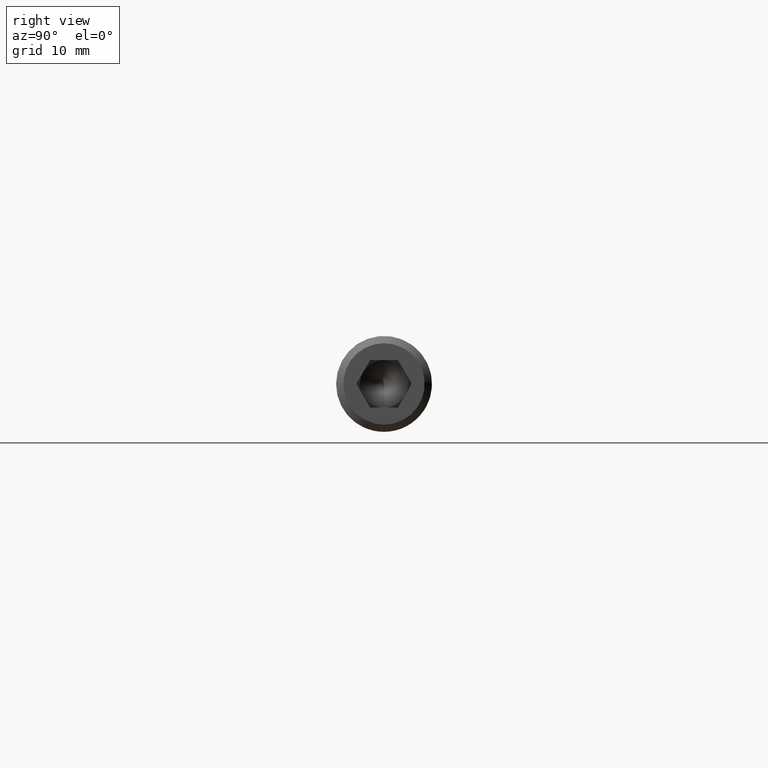
[diagram: clean part render]
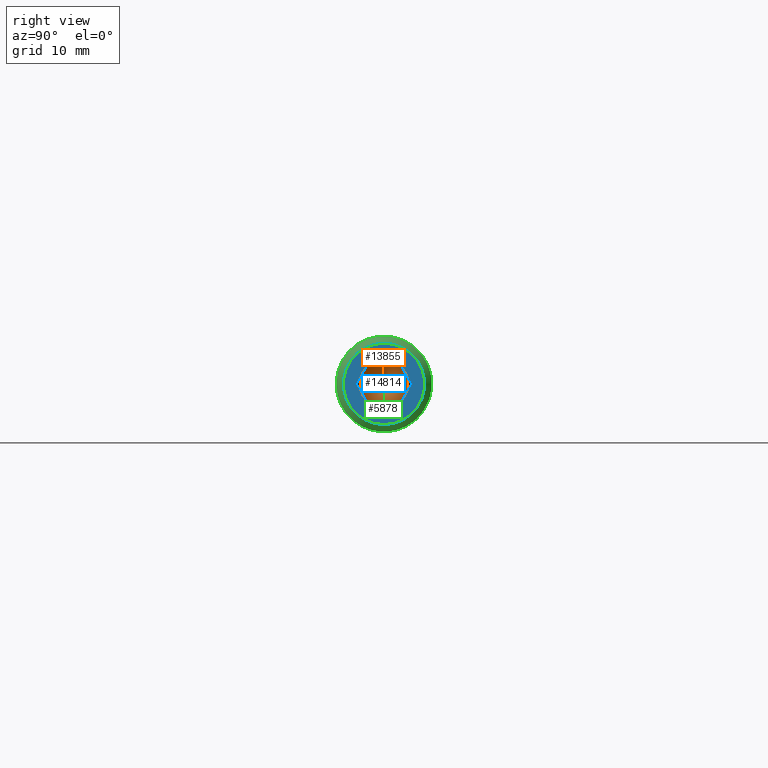
[diagram: same view with three faces highlighted in distinct colors, each labeled with its STEP entity id]
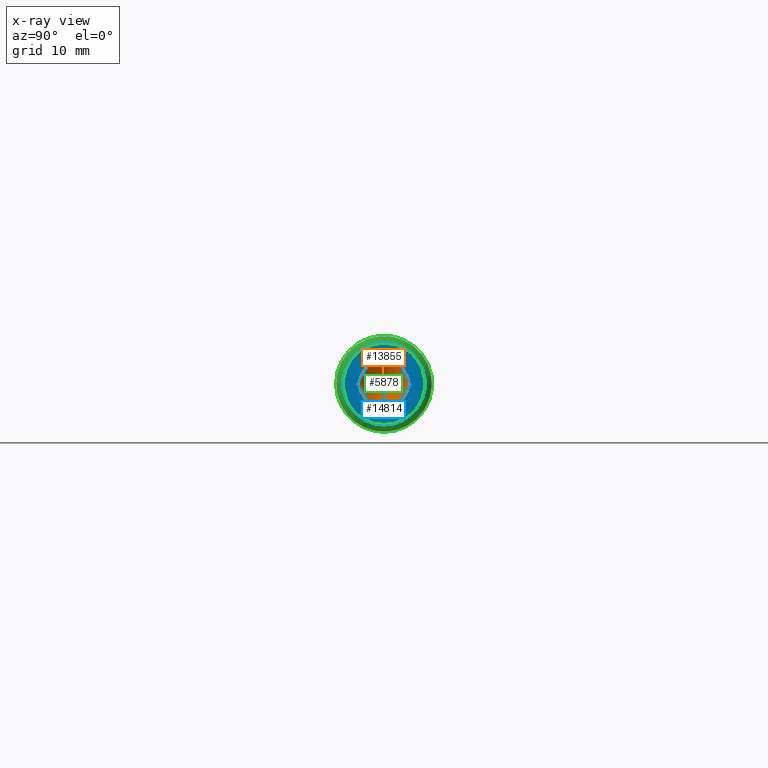
[diagram: x-ray of the same camera — body ghosted, the three highlighted faces saturated]
A machine part, right view with three faces highlighted in distinct colors.
The next image is the same camera in x-ray (body ghosted, the three faces saturated) — at least one of them is partly hidden behind the body in this view.
Their STEP definitions:

[orange] entity #13855 — the highlighted conical surface has half-angle 59 deg.
#170 = VERTEX_POINT ( 'NONE', #16548 ) ;
#765 = ORIENTED_EDGE ( 'NONE', *, *, #15495, .T. ) ;
#844 = ORIENTED_EDGE ( 'NONE', *, *, #7457, .F. ) ;
#886 = AXIS2_PLACEMENT_3D ( 'NONE', #8469, #12999, #2920 ) ;
#1469 = CARTESIAN_POINT ( 'NONE',  ( 55.00000000000000000, 3.755786496842892600E-016, -2.000000000000000000 ) ) ;
#1538 = DIRECTION ( 'NONE',  ( -1.000000000000000000, -0.0000000000000000000, 0.0000000000000000000 ) ) ;
#1597 = DIRECTION ( 'NONE',  ( 0.0000000000000000000, 0.0000000000000000000, 1.000000000000000000 ) ) ;
#1627 = EDGE_CURVE ( 'NONE', #13230, #8845, #8529, .T. ) ;
#2353 = EDGE_CURVE ( 'NONE', #8845, #8302, #6944, .T. ) ;
#2422 = CARTESIAN_POINT ( 'NONE',  ( 55.00000000000000000, -1.732050807568875400, 0.9999999999999985600 ) ) ;
#2920 = DIRECTION ( 'NONE',  ( 0.0000000000000000000, 0.0000000000000000000, 1.000000000000000000 ) ) ;
#3051 = CARTESIAN_POINT ( 'NONE',  ( 55.00000000000000000, 0.0000000000000000000, -1.592040838891560300E-015 ) ) ;
#3495 = CARTESIAN_POINT ( 'NONE',  ( 55.00000000000000000, 1.732050807568875900, 0.9999999999999978900 ) ) ;
#4305 = CARTESIAN_POINT ( 'NONE',  ( 55.00000000000000000, 0.0000000000000000000, 1.999999999999999600 ) ) ;
#5507 = ORIENTED_EDGE ( 'NONE', *, *, #2353, .F. ) ;
#5804 = CARTESIAN_POINT ( 'NONE',  ( 55.00000000000000000, 0.0000000000000000000, -1.121444179991781000E-015 ) ) ;
#5894 = DIRECTION ( 'NONE',  ( 0.0000000000000000000, 0.0000000000000000000, -1.000000000000000000 ) ) ;
#5915 = VERTEX_POINT ( 'NONE', #2422 ) ;
#6129 = AXIS2_PLACEMENT_3D ( 'NONE', #14236, #7124, #15632 ) ;
#6597 = DIRECTION ( 'NONE',  ( -1.000000000000000000, -0.0000000000000000000, 0.0000000000000000000 ) ) ;
#6618 = AXIS2_PLACEMENT_3D ( 'NONE', #5804, #1538, #1597 ) ;
#6944 = CIRCLE ( 'NONE', #18146, 1.999999999999997800 ) ;
#7124 = DIRECTION ( 'NONE',  ( 1.000000000000000000, -0.0000000000000000000, -1.413814998894124700E-016 ) ) ;
#7457 = EDGE_CURVE ( 'NONE', #18397, #170, #7988, .T. ) ;
#7721 = CIRCLE ( 'NONE', #11739, 1.999999999999998200 ) ;
#7729 = DIRECTION ( 'NONE',  ( -1.000000000000000000, -0.0000000000000000000, 0.0000000000000000000 ) ) ;
#7978 = EDGE_CURVE ( 'NONE', #5915, #13230, #18252, .T. ) ;
#7988 = CIRCLE ( 'NONE', #8252, 1.999999999999997800 ) ;
#8252 = AXIS2_PLACEMENT_3D ( 'NONE', #14488, #11505, #10137 ) ;
#8302 = VERTEX_POINT ( 'NONE', #8719 ) ;
#8469 = CARTESIAN_POINT ( 'NONE',  ( 55.00000000000000000, 0.0000000000000000000, -1.121444179991781000E-015 ) ) ;
#8529 = CIRCLE ( 'NONE', #886, 1.999999999999997800 ) ;
#8719 = CARTESIAN_POINT ( 'NONE',  ( 55.00000000000000000, 1.732050807568876300, -1.000000000000000200 ) ) ;
#8792 = ORIENTED_EDGE ( 'NONE', *, *, #1627, .F. ) ;
#8845 = VERTEX_POINT ( 'NONE', #3495 ) ;
#8988 = CARTESIAN_POINT ( 'NONE',  ( 55.00000000000000000, 0.0000000000000000000, -1.121444179991781000E-015 ) ) ;
#10137 = DIRECTION ( 'NONE',  ( 0.0000000000000000000, 0.0000000000000000000, 1.000000000000000000 ) ) ;
#10239 = DIRECTION ( 'NONE',  ( 1.000000000000000000, -0.0000000000000000000, -1.413814998894124700E-016 ) ) ;
#10571 = EDGE_LOOP ( 'NONE', ( #765, #5507, #8792, #10864, #11604, #844 ) ) ;
#10864 = ORIENTED_EDGE ( 'NONE', *, *, #7978, .F. ) ;
#11144 = CARTESIAN_POINT ( 'NONE',  ( 55.00000000000000000, 0.0000000000000000000, -1.121444179991781000E-015 ) ) ;
#11505 = DIRECTION ( 'NONE',  ( -1.000000000000000000, -0.0000000000000000000, 0.0000000000000000000 ) ) ;
#11604 = ORIENTED_EDGE ( 'NONE', *, *, #16333, .F. ) ;
#11739 = AXIS2_PLACEMENT_3D ( 'NONE', #3051, #10239, #5894 ) ;
#11900 = DIRECTION ( 'NONE',  ( 0.0000000000000000000, 0.0000000000000000000, 1.000000000000000000 ) ) ;
#12999 = DIRECTION ( 'NONE',  ( -1.000000000000000000, -0.0000000000000000000, 0.0000000000000000000 ) ) ;
#13230 = VERTEX_POINT ( 'NONE', #4305 ) ;
#13268 = CIRCLE ( 'NONE', #6618, 1.999999999999997800 ) ;
#13855 = ADVANCED_FACE ( 'NONE', ( #16701 ), #15134, .F. ) ;
#14236 = CARTESIAN_POINT ( 'NONE',  ( 55.00000000000000000, 0.0000000000000000000, -1.592040838891560300E-015 ) ) ;
#14488 = CARTESIAN_POINT ( 'NONE',  ( 55.00000000000000000, 0.0000000000000000000, -1.121444179991781000E-015 ) ) ;
#15134 = CONICAL_SURFACE ( 'NONE', #6129, 1.999999999999998200, 1.029744258676651900 ) ;
#15495 = EDGE_CURVE ( 'NONE', #18397, #8302, #7721, .T. ) ;
#15632 = DIRECTION ( 'NONE',  ( 0.0000000000000000000, 0.0000000000000000000, -1.000000000000000000 ) ) ;
#16333 = EDGE_CURVE ( 'NONE', #170, #5915, #13268, .T. ) ;
#16548 = CARTESIAN_POINT ( 'NONE',  ( 55.00000000000000000, -1.732050807568876300, -1.000000000000000000 ) ) ;
#16592 = DIRECTION ( 'NONE',  ( 0.0000000000000000000, 0.0000000000000000000, 1.000000000000000000 ) ) ;
#16701 = FACE_OUTER_BOUND ( 'NONE', #10571, .T. ) ;
#18146 = AXIS2_PLACEMENT_3D ( 'NONE', #11144, #6597, #16592 ) ;
#18172 = AXIS2_PLACEMENT_3D ( 'NONE', #8988, #7729, #11900 ) ;
#18252 = CIRCLE ( 'NONE', #18172, 1.999999999999997800 ) ;
#18397 = VERTEX_POINT ( 'NONE', #1469 ) ;

[blue] entity #14814 — the highlighted planar face has unit normal (1, 0, 0).
#44 = CARTESIAN_POINT ( 'NONE',  ( 60.00000000000000000, 0.0000000000000000000, -3.399999999999997200 ) ) ;
#942 = CARTESIAN_POINT ( 'NONE',  ( 60.00000000000000000, 0.0000000000000000000, 0.0000000000000000000 ) ) ;
#1324 = EDGE_CURVE ( 'NONE', #6279, #8384, #1663, .T. ) ;
#1663 = LINE ( 'NONE', #5636, #1892 ) ;
#1827 = CARTESIAN_POINT ( 'NONE',  ( 60.00000000000000000, -1.154700538379254300, 2.000000000000000000 ) ) ;
#1892 = VECTOR ( 'NONE', #7227, 1000.000000000000000 ) ;
#2084 = VERTEX_POINT ( 'NONE', #10657 ) ;
#2625 = EDGE_CURVE ( 'NONE', #6687, #2084, #9421, .T. ) ;
#2633 = VECTOR ( 'NONE', #18069, 1000.000000000000000 ) ;
#2846 = CARTESIAN_POINT ( 'NONE',  ( 60.00000000000000000, 0.0000000000000000000, 0.0000000000000000000 ) ) ;
#2969 = DIRECTION ( 'NONE',  ( 0.0000000000000000000, 0.0000000000000000000, -1.000000000000000000 ) ) ;
#3415 = DIRECTION ( 'NONE',  ( 0.0000000000000000000, -1.000000000000000000, 0.0000000000000000000 ) ) ;
#3463 = CARTESIAN_POINT ( 'NONE',  ( 60.00000000000000000, 2.309401076758500700, -2.008531840100152800E-016 ) ) ;
#3526 = EDGE_LOOP ( 'NONE', ( #6141, #8483, #15915, #16500, #5427, #9475 ) ) ;
#3823 = DIRECTION ( 'NONE',  ( 0.0000000000000000000, 0.0000000000000000000, -1.000000000000000000 ) ) ;
#3826 = LINE ( 'NONE', #1827, #16047 ) ;
#4130 = VERTEX_POINT ( 'NONE', #16337 ) ;
#4238 = FACE_OUTER_BOUND ( 'NONE', #11356, .T. ) ;
#4889 = EDGE_CURVE ( 'NONE', #18200, #18200, #13265, .T. ) ;
#4895 = CARTESIAN_POINT ( 'NONE',  ( 60.00000000000000000, 1.154700538379249500, 2.000000000000000000 ) ) ;
#5137 = CARTESIAN_POINT ( 'NONE',  ( 60.00000000000000000, -1.154700538379254300, 2.000000000000000000 ) ) ;
#5278 = AXIS2_PLACEMENT_3D ( 'NONE', #942, #11969, #3823 ) ;
#5427 = ORIENTED_EDGE ( 'NONE', *, *, #18228, .F. ) ;
#5473 = EDGE_CURVE ( 'NONE', #4130, #6279, #8681, .T. ) ;
#5636 = CARTESIAN_POINT ( 'NONE',  ( 60.00000000000000000, 2.309401076758500700, -2.008531840100152800E-016 ) ) ;
#5766 = EDGE_CURVE ( 'NONE', #8384, #14531, #6233, .T. ) ;
#6141 = ORIENTED_EDGE ( 'NONE', *, *, #6698, .F. ) ;
#6233 = LINE ( 'NONE', #4895, #13562 ) ;
#6279 = VERTEX_POINT ( 'NONE', #3463 ) ;
#6687 = VERTEX_POINT ( 'NONE', #9202 ) ;
#6698 = EDGE_CURVE ( 'NONE', #14531, #6687, #3826, .T. ) ;
#6742 = DIRECTION ( 'NONE',  ( 0.0000000000000000000, 0.4999999999999997800, -0.8660254037844387100 ) ) ;
#6967 = VECTOR ( 'NONE', #6742, 1000.000000000000200 ) ;
#7227 = DIRECTION ( 'NONE',  ( 0.0000000000000000000, -0.4999999999999998900, 0.8660254037844387100 ) ) ;
#7578 = CARTESIAN_POINT ( 'NONE',  ( 60.00000000000000000, 1.154700538379249500, 2.000000000000000000 ) ) ;
#8384 = VERTEX_POINT ( 'NONE', #7578 ) ;
#8483 = ORIENTED_EDGE ( 'NONE', *, *, #5766, .F. ) ;
#8681 = LINE ( 'NONE', #11858, #9799 ) ;
#9202 = CARTESIAN_POINT ( 'NONE',  ( 60.00000000000000000, -2.309401076758506000, 0.0000000000000000000 ) ) ;
#9267 = DIRECTION ( 'NONE',  ( 0.0000000000000000000, -0.5000000000000003300, -0.8660254037844384900 ) ) ;
#9421 = LINE ( 'NONE', #15307, #6967 ) ;
#9475 = ORIENTED_EDGE ( 'NONE', *, *, #2625, .F. ) ;
#9799 = VECTOR ( 'NONE', #17979, 999.9999999999998900 ) ;
#10657 = CARTESIAN_POINT ( 'NONE',  ( 60.00000000000000000, -1.154700538379255700, -2.000000000000000000 ) ) ;
#11356 = EDGE_LOOP ( 'NONE', ( #13151 ) ) ;
#11521 = DIRECTION ( 'NONE',  ( 1.000000000000000000, 0.0000000000000000000, 0.0000000000000000000 ) ) ;
#11858 = CARTESIAN_POINT ( 'NONE',  ( 60.00000000000000000, 1.154700538379249500, -1.999999999999999600 ) ) ;
#11969 = DIRECTION ( 'NONE',  ( 1.000000000000000000, 0.0000000000000000000, 0.0000000000000000000 ) ) ;
#13151 = ORIENTED_EDGE ( 'NONE', *, *, #4889, .T. ) ;
#13265 = CIRCLE ( 'NONE', #5278, 3.399999999999997200 ) ;
#13562 = VECTOR ( 'NONE', #3415, 1000.000000000000000 ) ;
#14531 = VERTEX_POINT ( 'NONE', #5137 ) ;
#14814 = ADVANCED_FACE ( 'NONE', ( #18447, #4238 ), #15721, .T. ) ;
#15212 = CARTESIAN_POINT ( 'NONE',  ( 60.00000000000000000, -1.154700538379255700, -2.000000000000000000 ) ) ;
#15307 = CARTESIAN_POINT ( 'NONE',  ( 60.00000000000000000, -2.309401076758506500, -4.766870681724039000E-018 ) ) ;
#15721 = PLANE ( 'NONE',  #18335 ) ;
#15915 = ORIENTED_EDGE ( 'NONE', *, *, #1324, .F. ) ;
#16047 = VECTOR ( 'NONE', #9267, 1000.000000000000100 ) ;
#16337 = CARTESIAN_POINT ( 'NONE',  ( 60.00000000000000000, 1.154700538379249500, -1.999999999999999600 ) ) ;
#16500 = ORIENTED_EDGE ( 'NONE', *, *, #5473, .F. ) ;
#17751 = LINE ( 'NONE', #15212, #2633 ) ;
#17979 = DIRECTION ( 'NONE',  ( 0.0000000000000000000, 0.4999999999999999400, 0.8660254037844387100 ) ) ;
#18069 = DIRECTION ( 'NONE',  ( 0.0000000000000000000, 1.000000000000000000, 1.877893248421447600E-016 ) ) ;
#18200 = VERTEX_POINT ( 'NONE', #44 ) ;
#18228 = EDGE_CURVE ( 'NONE', #2084, #4130, #17751, .T. ) ;
#18335 = AXIS2_PLACEMENT_3D ( 'NONE', #2846, #11521, #2969 ) ;
#18447 = FACE_BOUND ( 'NONE', #3526, .T. ) ;

[green] entity #5878 — the highlighted conical surface has half-angle 45 deg.
#44 = CARTESIAN_POINT ( 'NONE',  ( 60.00000000000000000, 0.0000000000000000000, -3.399999999999997200 ) ) ;
#633 = EDGE_CURVE ( 'NONE', #9732, #9732, #1024, .T. ) ;
#942 = CARTESIAN_POINT ( 'NONE',  ( 60.00000000000000000, 0.0000000000000000000, 0.0000000000000000000 ) ) ;
#1024 = CIRCLE ( 'NONE', #17901, 4.000000000000000000 ) ;
#1498 = ORIENTED_EDGE ( 'NONE', *, *, #4889, .F. ) ;
#2238 = CARTESIAN_POINT ( 'NONE',  ( 60.00000000000000000, 0.0000000000000000000, 0.0000000000000000000 ) ) ;
#3257 = CARTESIAN_POINT ( 'NONE',  ( 59.39999999999998400, 0.0000000000000000000, -4.000000000000000000 ) ) ;
#3371 = CONICAL_SURFACE ( 'NONE', #8721, 3.399999999999997200, 0.7853981633974420600 ) ;
#3823 = DIRECTION ( 'NONE',  ( 0.0000000000000000000, 0.0000000000000000000, -1.000000000000000000 ) ) ;
#4889 = EDGE_CURVE ( 'NONE', #18200, #18200, #13265, .T. ) ;
#5278 = AXIS2_PLACEMENT_3D ( 'NONE', #942, #11969, #3823 ) ;
#5486 = EDGE_LOOP ( 'NONE', ( #11624 ) ) ;
#5878 = ADVANCED_FACE ( 'NONE', ( #15169, #6679 ), #3371, .T. ) ;
#6502 = DIRECTION ( 'NONE',  ( 0.0000000000000000000, 0.0000000000000000000, -1.000000000000000000 ) ) ;
#6614 = DIRECTION ( 'NONE',  ( 0.0000000000000000000, 0.0000000000000000000, 1.000000000000000000 ) ) ;
#6679 = FACE_BOUND ( 'NONE', #13716, .T. ) ;
#8180 = CARTESIAN_POINT ( 'NONE',  ( 59.39999999999998400, 0.0000000000000000000, 0.0000000000000000000 ) ) ;
#8721 = AXIS2_PLACEMENT_3D ( 'NONE', #2238, #10807, #6614 ) ;
#9732 = VERTEX_POINT ( 'NONE', #3257 ) ;
#10807 = DIRECTION ( 'NONE',  ( -1.000000000000000000, 0.0000000000000000000, 0.0000000000000000000 ) ) ;
#11624 = ORIENTED_EDGE ( 'NONE', *, *, #633, .F. ) ;
#11969 = DIRECTION ( 'NONE',  ( 1.000000000000000000, 0.0000000000000000000, 0.0000000000000000000 ) ) ;
#13265 = CIRCLE ( 'NONE', #5278, 3.399999999999997200 ) ;
#13716 = EDGE_LOOP ( 'NONE', ( #1498 ) ) ;
#15055 = DIRECTION ( 'NONE',  ( -1.000000000000000000, 0.0000000000000000000, 0.0000000000000000000 ) ) ;
#15169 = FACE_OUTER_BOUND ( 'NONE', #5486, .T. ) ;
#17901 = AXIS2_PLACEMENT_3D ( 'NONE', #8180, #15055, #6502 ) ;
#18200 = VERTEX_POINT ( 'NONE', #44 ) ;